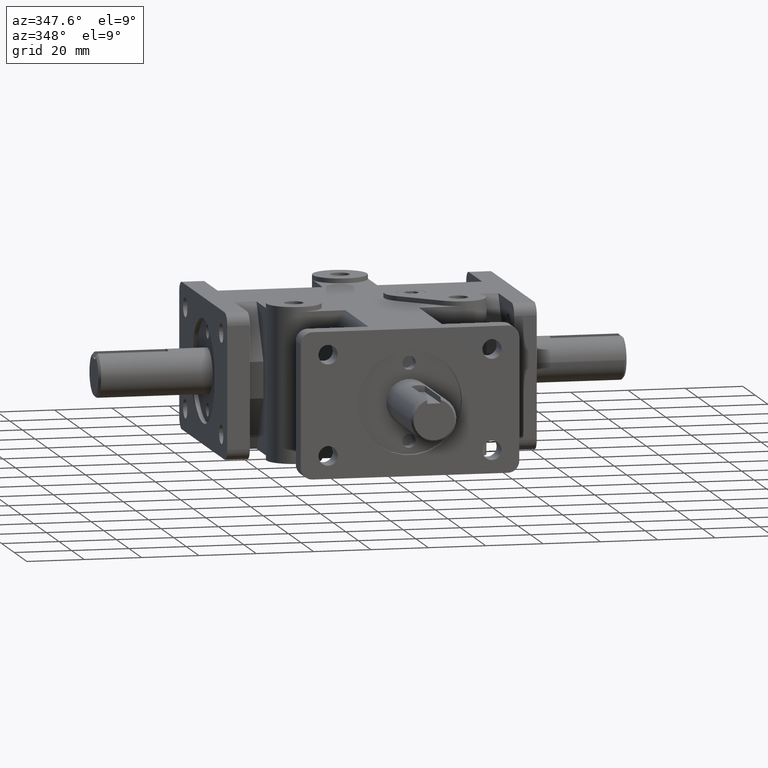
[diagram: clean part render]
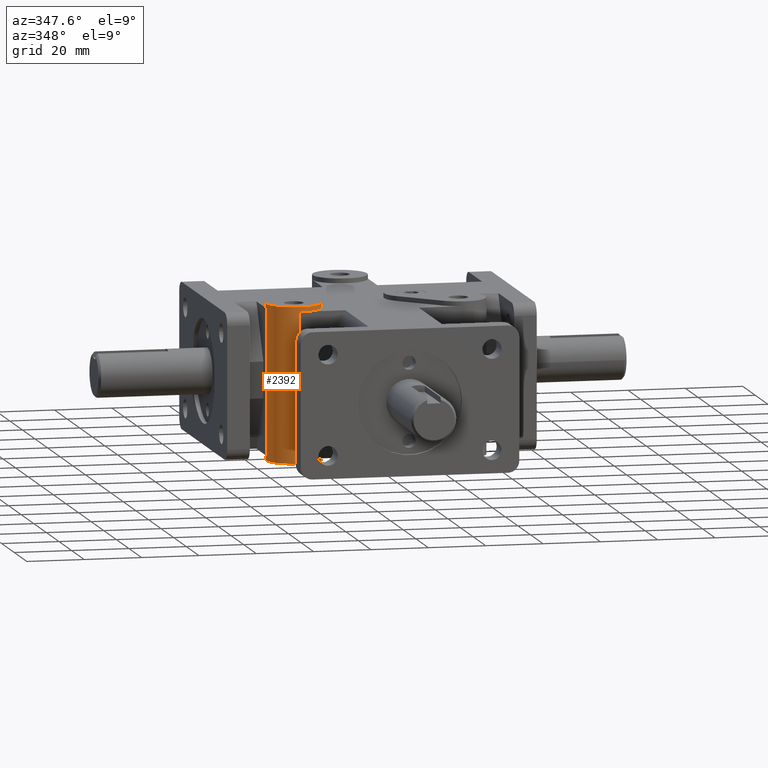
[diagram: same view with one face highlighted and labeled with its STEP entity id]
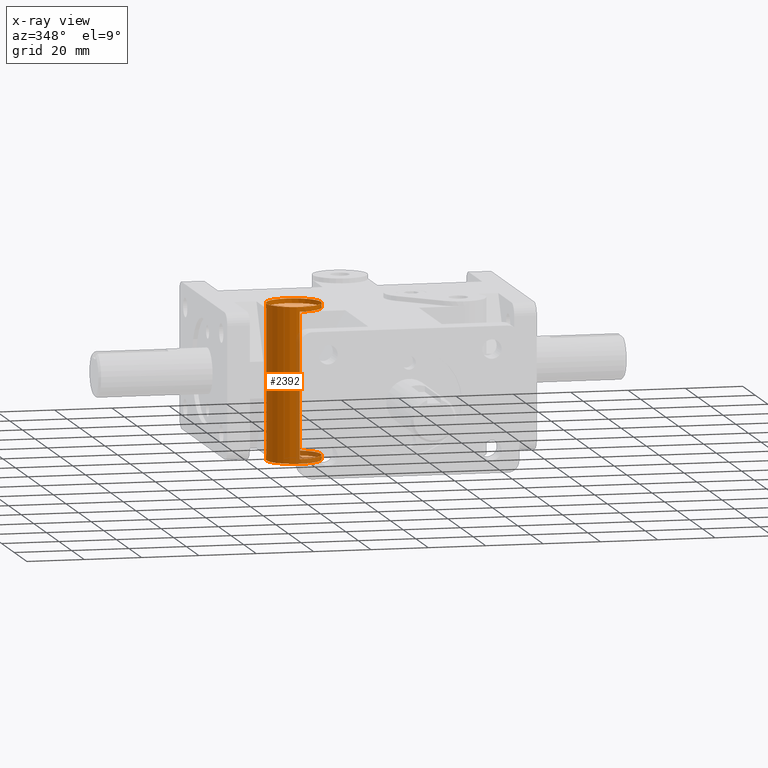
[diagram: x-ray of the same camera — body ghosted, the highlighted face saturated]
A machine part, auxiliary view. The second image highlights one B-rep face of the part: STEP entity #2392.
The next image is the same camera in x-ray: the body ghosted, the highlighted face saturated — about 12% of this face is hidden behind the body in this view.
In plain terms, the highlighted cylindrical surface (bore or boss wall) has radius 9.525 mm, axis along (0, 0, -1).
Its self-contained STEP definition (entity closure, byte-faithful):
#273=FACE_OUTER_BOUND('',#441,.T.);
#441=EDGE_LOOP('',(#2184,#2185,#2186,#2187,#2188,#2189,#2190,#2191,#2192,
#2193));
#667=LINE('',#4025,#889);
#668=LINE('',#4027,#890);
#669=LINE('',#4028,#891);
#670=LINE('',#4029,#892);
#889=VECTOR('',#3322,1.);
#890=VECTOR('',#3325,0.375);
#891=VECTOR('',#3326,1.);
#892=VECTOR('',#3327,0.375);
#953=CIRCLE('',#2504,0.375);
#958=CIRCLE('',#2511,0.375);
#998=CIRCLE('',#2616,0.375);
#999=CIRCLE('',#2618,0.375);
#1110=VERTEX_POINT('',#3615);
#1111=VERTEX_POINT('',#3617);
#1118=VERTEX_POINT('',#3637);
#1119=VERTEX_POINT('',#3639);
#1219=VERTEX_POINT('',#3981);
#1220=VERTEX_POINT('',#3984);
#1354=EDGE_CURVE('',#1110,#1111,#953,.T.);
#1366=EDGE_CURVE('',#1118,#1119,#958,.T.);
#1531=EDGE_CURVE('',#1219,#1219,#998,.T.);
#1532=EDGE_CURVE('',#1220,#1220,#999,.T.);
#1550=EDGE_CURVE('',#1110,#1119,#667,.T.);
#1551=EDGE_CURVE('',#1220,#1119,#668,.T.);
#1552=EDGE_CURVE('',#1111,#1118,#669,.T.);
#1553=EDGE_CURVE('',#1110,#1219,#670,.T.);
#2184=ORIENTED_EDGE('',*,*,#1532,.T.);
#2185=ORIENTED_EDGE('',*,*,#1551,.T.);
#2186=ORIENTED_EDGE('',*,*,#1366,.F.);
#2187=ORIENTED_EDGE('',*,*,#1552,.F.);
#2188=ORIENTED_EDGE('',*,*,#1354,.F.);
#2189=ORIENTED_EDGE('',*,*,#1553,.T.);
#2190=ORIENTED_EDGE('',*,*,#1531,.T.);
#2191=ORIENTED_EDGE('',*,*,#1553,.F.);
#2192=ORIENTED_EDGE('',*,*,#1550,.T.);
#2193=ORIENTED_EDGE('',*,*,#1551,.F.);
#2268=CYLINDRICAL_SURFACE('',#2641,0.375);
#2392=ADVANCED_FACE('',(#273),#2268,.T.);
#2504=AXIS2_PLACEMENT_3D('',#3618,#2907,#2908);
#2511=AXIS2_PLACEMENT_3D('',#3640,#2928,#2929);
#2616=AXIS2_PLACEMENT_3D('',#3982,#3257,#3258);
#2618=AXIS2_PLACEMENT_3D('',#3985,#3261,#3262);
#2641=AXIS2_PLACEMENT_3D('',#4026,#3323,#3324);
#2907=DIRECTION('center_axis',(0.,0.,-1.));
#2908=DIRECTION('ref_axis',(1.,0.,0.));
#2928=DIRECTION('center_axis',(0.,0.,1.));
#2929=DIRECTION('ref_axis',(1.,0.,0.));
#3257=DIRECTION('center_axis',(0.,0.,-1.));
#3258=DIRECTION('ref_axis',(1.,0.,0.));
#3261=DIRECTION('center_axis',(0.,0.,1.));
#3262=DIRECTION('ref_axis',(1.,0.,0.));
#3322=DIRECTION('',(0.,0.,-1.));
#3323=DIRECTION('center_axis',(0.,0.,-1.));
#3324=DIRECTION('ref_axis',(1.,0.,0.));
#3325=DIRECTION('',(0.,0.,1.));
#3326=DIRECTION('',(0.,0.,-1.));
#3327=DIRECTION('',(0.,0.,1.));
#3615=CARTESIAN_POINT('',(-1.505,2.12,1.));
#3617=CARTESIAN_POINT('',(-1.13,1.745,1.));
#3618=CARTESIAN_POINT('Origin',(-1.13,2.12,1.));
#3637=CARTESIAN_POINT('',(-1.13,1.745,-1.));
#3639=CARTESIAN_POINT('',(-1.505,2.12,-1.));
#3640=CARTESIAN_POINT('Origin',(-1.13,2.12,-1.));
#3981=CARTESIAN_POINT('',(-1.505,2.12,1.065));
#3982=CARTESIAN_POINT('Origin',(-1.13,2.12,1.065));
#3984=CARTESIAN_POINT('',(-1.505,2.12,-1.065));
#3985=CARTESIAN_POINT('Origin',(-1.13,2.12,-1.065));
#4025=CARTESIAN_POINT('',(-1.505,2.12,0.));
#4026=CARTESIAN_POINT('Origin',(-1.13,2.12,0.));
#4027=CARTESIAN_POINT('',(-1.505,2.12,0.));
#4028=CARTESIAN_POINT('',(-1.13,1.745,0.));
#4029=CARTESIAN_POINT('',(-1.505,2.12,0.));